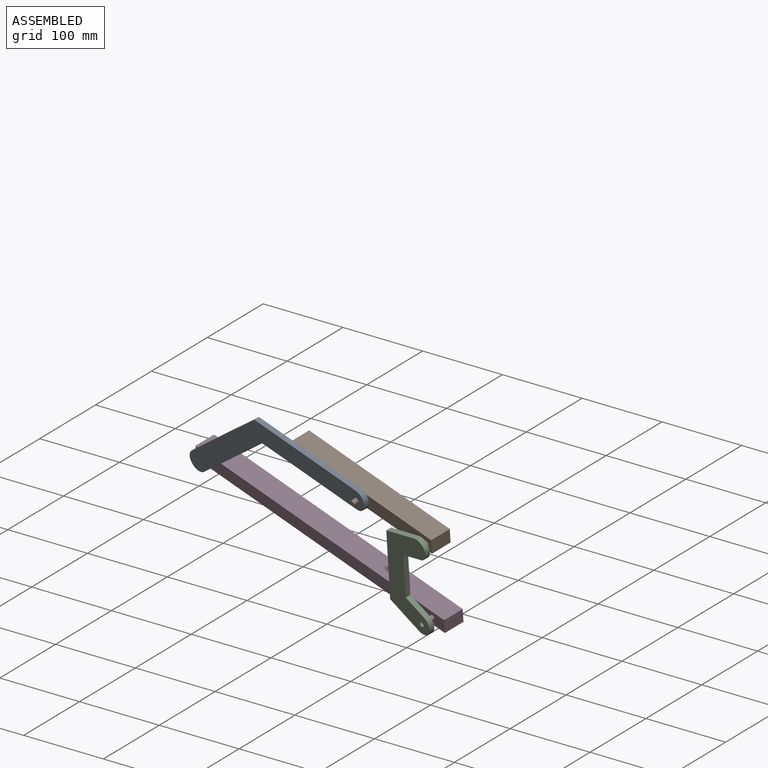
[diagram: assembled view]
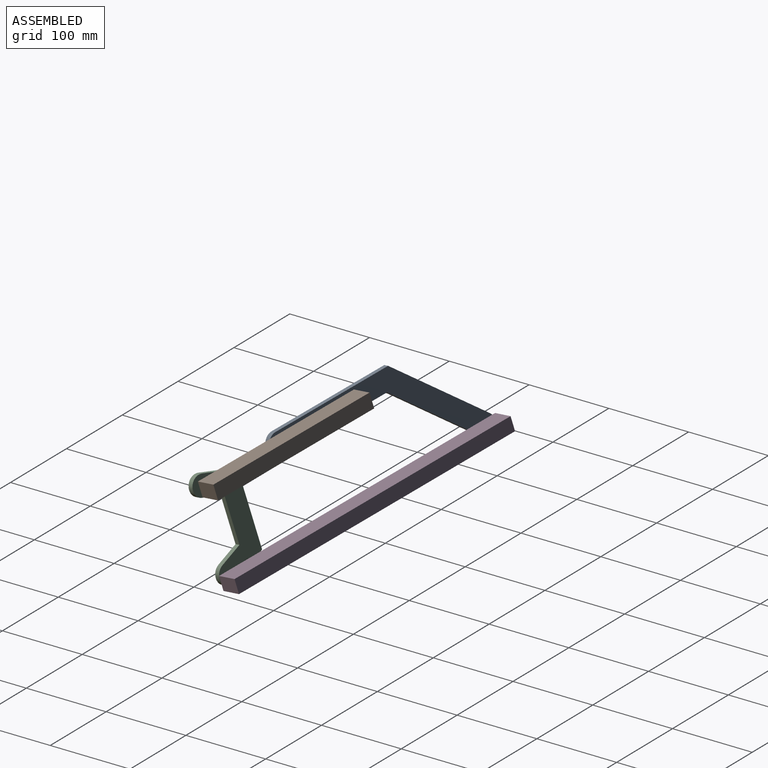
[diagram: assembled view, second angle]
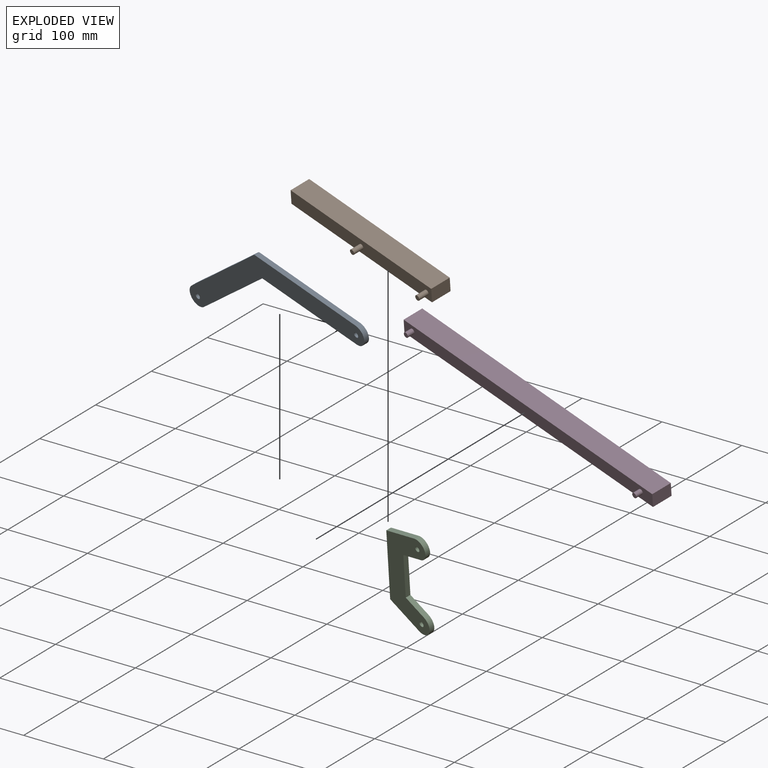
[diagram: exploded view]
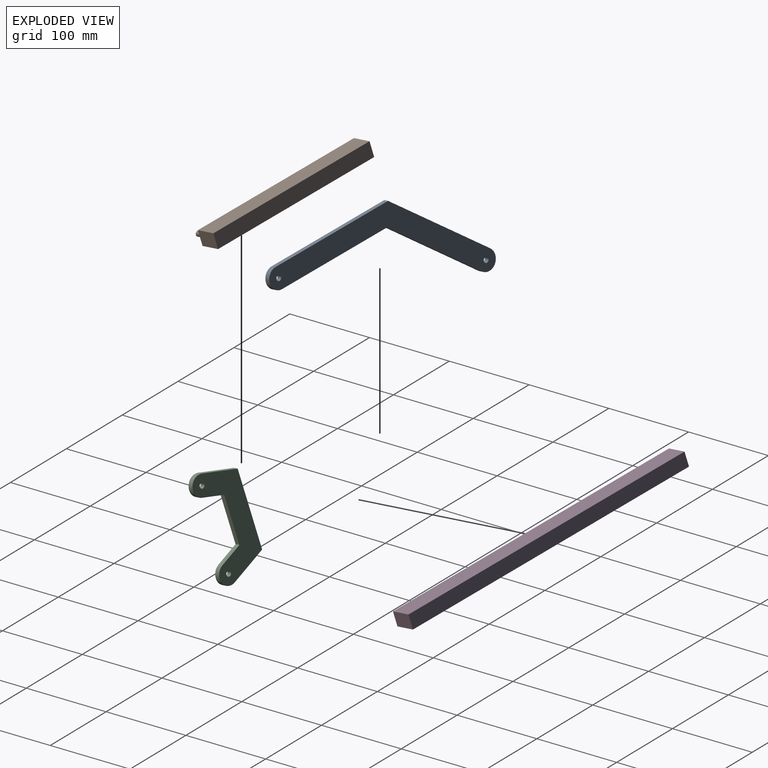
[diagram: exploded view, second angle]
ASSEMBLY  parts=4 mates=4
PART A: 10 faces, bbox 279.4x127x6.4 mm
  f0: cylinder r=12.7mm len=25.4mm, axis (0,0,-1), area 257.9mm2, adj f1,f6,f8,f9
  f1: plane 157.38x6.35mm, normal (0,1,0), area 999.3mm2, adj f0,f2,f8,f9
  f2: plane 105.32x105.32mm, normal (-0.71,0.71,0), area 945.8mm2, adj f1,f3,f8,f9
  f3: cylinder r=12.7mm len=21.68mm, axis (0,0,-1), area 253.4mm2, adj f2,f4,f8,f9
  f4: plane 97.89x97.89mm, normal (0.71,-0.71,0), area 879.1mm2, adj f3,f6,f8,f9
  f5: cylinder r=3.17mm len=6.35mm, axis (0,0,-1), area 126.7mm2, adj f8,f9
  f6: plane 146.7x6.35mm, normal (0,-1,0), area 931.5mm2, adj f0,f4,f8,f9
  f7: cylinder r=3.17mm len=6.35mm, axis (0,0,-1), area 126.7mm2, adj f8,f9
  f8: plane 279.4x127mm, normal (0,0,1), area 7962.3mm2, adj f0,f1,f2,f3,f4,f5,f6,f7
  f9: plane 279.4x127mm, normal (0,0,-1), area 7962.3mm2, adj f0,f1,f2,f3,f4,f5,f6,f7
PART B: 10 faces, bbox 218.9x38.1x18.2 mm
  f0: plane 218.89x25.4mm, normal (0,0,-1), area 5559.8mm2, adj f1,f3,f4,f5
  f1: plane 25.4x18.18mm, normal (1,0,0), area 461.9mm2, adj f0,f2,f4,f5
  f2: plane 218.89x25.4mm, normal (0,0,1), area 5559.8mm2, adj f1,f3,f4,f5
  f3: plane 25.4x18.18mm, normal (-1,0,0), area 461.9mm2, adj f0,f2,f4,f5
  f4: plane 218.89x18.18mm, normal (0,1,0), area 3980.3mm2, adj f0,f1,f2,f3
  f5: plane 218.89x18.18mm, normal (0,-1,0), area 3917mm2, adj f0,f1,f2,f3,f6,f8
  f6: cylinder r=3.17mm len=12.7mm, axis (0,1,0), area 253.4mm2, adj f5,f7
  f7: plane 6.35x6.35mm, normal (0,-1,0), area 31.7mm2, adj f6
  f8: cylinder r=3.17mm len=12.7mm, axis (0,1,0), area 253.4mm2, adj f5,f9
  f9: plane 6.35x6.35mm, normal (0,-1,0), area 31.7mm2, adj f8
PART C: 12 faces, bbox 61.2x127x6.4 mm
  f0: cylinder r=12.7mm len=24.63mm, axis (0,0,-1), area 257.5mm2, adj f1,f8,f10,f11
  f1: plane 27.45x9.99mm, normal (0.34,0.94,0), area 185.5mm2, adj f0,f2,f10,f11
  f2: plane 57.85x6.35mm, normal (1,0,0), area 367.4mm2, adj f1,f3,f10,f11
  f3: plane 25.95x9.45mm, normal (0.34,-0.94,0), area 175.4mm2, adj f2,f4,f10,f11
  f4: cylinder r=12.7mm len=25.08mm, axis (0,0,-1), area 263.3mm2, adj f3,f5,f10,f11
  f5: plane 44.16x16.07mm, normal (-0.34,0.94,0), area 298.4mm2, adj f4,f6,f10,f11
  f6: plane 93.31x6.35mm, normal (-1,0,0), area 592.5mm2, adj f5,f8,f10,f11
  f7: cylinder r=3.17mm len=6.35mm, axis (0,0,-1), area 126.7mm2, adj f10,f11
  f8: plane 43.55x15.85mm, normal (-0.34,-0.94,0), area 294.3mm2, adj f0,f6,f10,f11
  f9: cylinder r=3.17mm len=6.35mm, axis (0,0,-1), area 126.7mm2, adj f10,f11
  f10: plane 127x61.2mm, normal (0,0,1), area 4294mm2, adj f0,f1,f2,f3,f4,f5,f6,f7
  f11: plane 127x61.2mm, normal (0,0,-1), area 4294mm2, adj f0,f1,f2,f3,f4,f5,f6,f7
PART D: 10 faces, bbox 387.1x34.3x17.3 mm
  f0: plane 25.4x17.3mm, normal (-1,0,0), area 439.4mm2, adj f1,f3,f4,f5
  f1: plane 387.08x25.4mm, normal (0,0,-1), area 9831.9mm2, adj f0,f2,f4,f5
  f2: plane 25.4x17.3mm, normal (1,0,0), area 439.4mm2, adj f1,f3,f4,f5
  f3: plane 387.08x25.4mm, normal (0,0,1), area 9831.9mm2, adj f0,f2,f4,f5
  f4: plane 387.08x17.3mm, normal (0,1,0), area 6696.4mm2, adj f0,f1,f2,f3
  f5: plane 387.08x17.3mm, normal (0,-1,0), area 6633.1mm2, adj f0,f1,f2,f3,f6,f8
  f6: cylinder r=3.17mm len=8.89mm, axis (0,1,0), area 177.3mm2, adj f5,f7
  f7: plane 6.35x6.35mm, normal (0,-1,0), area 31.7mm2, adj f6
  f8: cylinder r=3.17mm len=8.89mm, axis (0,1,0), area 177.3mm2, adj f5,f9
  f9: plane 6.35x6.35mm, normal (0,-1,0), area 31.7mm2, adj f8
PLACE A rot(axis=(0.98,-0.04,-0.17),104.2deg) t=(-96.92,-141.43,34.77)mm
PLACE B rot(axis=(0.63,0.39,-0.67),21deg) t=(159.12,-222.62,89.45)mm
PLACE C rot(axis=(0.98,-0.04,-0.18),104.3deg) t=(242.94,-226.24,-26.8)mm
PLACE D rot(axis=(0.63,0.4,-0.67),21deg) t=(-26.43,-155.15,22.98)mm fixed
MATE revolute B.f5 <-> A.f0  axis (-0.25,-0.94,-0.21) through (158.42,-222.56,90.03)mm
MATE revolute B.f8 <-> C.f4  axis (-0.25,-0.94,-0.21) through (253.46,-257.14,69.62)mm
MATE revolute D.f6 <-> A.f3  axis (-0.25,-0.94,-0.21) through (-98.54,-147.42,33.45)mm
MATE revolute D.f8 <-> C.f0  axis (-0.25,-0.94,-0.21) through (242.94,-226.24,-26.8)mm
